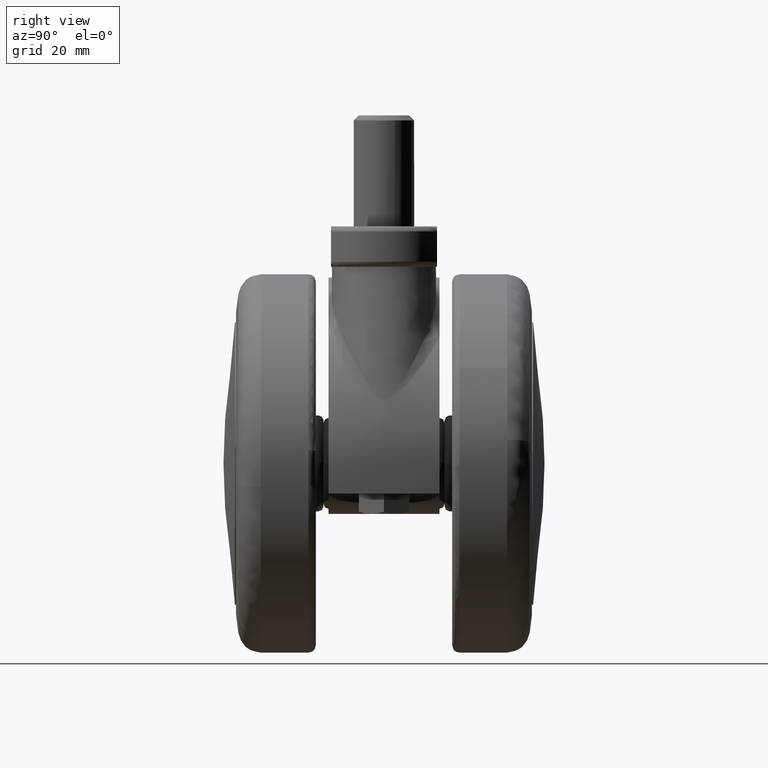
[diagram: clean part render]
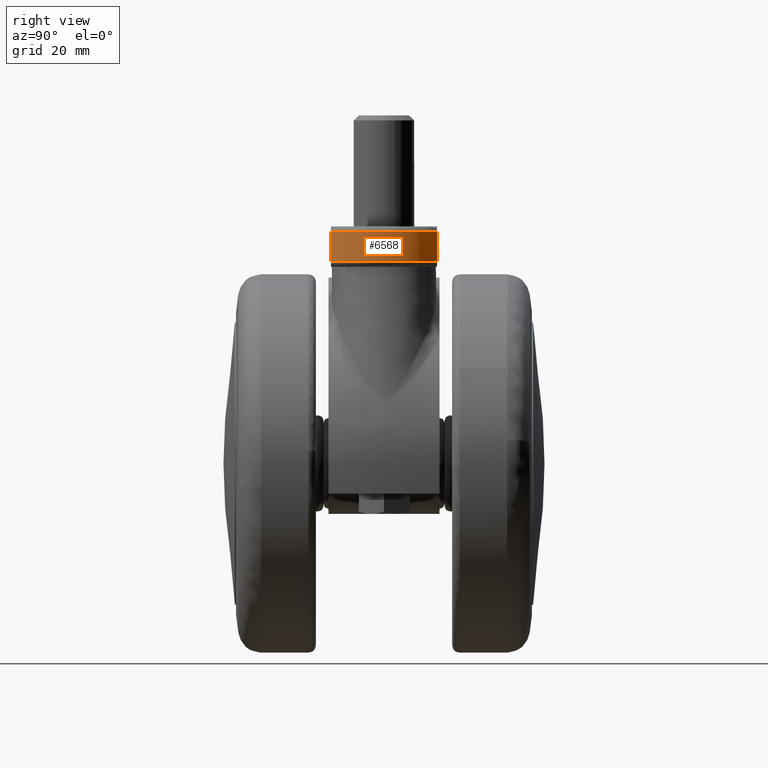
[diagram: same view with one face highlighted and labeled with its STEP entity id]
A machine part, right view. The second image highlights one B-rep face of the part: STEP entity #6568.
In plain terms, the highlighted face is a freeform B-spline surface patch.
Its self-contained STEP definition (entity closure, byte-faithful):
#5998=CARTESIAN_POINT('',(25.809474999999999,-10.500000000000000,46.0));
#5999=VERTEX_POINT('',#5998);
#6031=CARTESIAN_POINT('',(25.809474999999999,10.500000000000000,46.0));
#6032=VERTEX_POINT('',#6031);
#6033=CARTESIAN_POINT('',(25.809474999999999,10.500000000000000,46.0));
#6034=CARTESIAN_POINT('',(31.999999999999996,7.074885703601195,46.0));
#6035=CARTESIAN_POINT('',(32.0,0.0,46.0));
#6036=CARTESIAN_POINT('',(31.999999999999996,-7.074885703601193,46.0));
#6037=CARTESIAN_POINT('',(25.809474999999999,-10.500000000000000,46.0));
#6045=(BOUNDED_CURVE()B_SPLINE_CURVE(2,(#6033,#6034,#6035,#6036,#6037),.UNSPECIFIED.,.F.,.U.)B_SPLINE_CURVE_WITH_KNOTS((3,2,3),(0.0,0.500000000000000,1.0),.UNSPECIFIED.)CURVE()GEOMETRIC_REPRESENTATION_ITEM()RATIONAL_B_SPLINE_CURVE((1.0,0.861429891820523,1.0,0.861429891820523,1.0))REPRESENTATION_ITEM(''));
#6046=EDGE_CURVE('',#6032,#5999,#6045,.T.);
#6122=CARTESIAN_POINT('',(25.809474999999999,-10.500000000000000,40.0));
#6123=VERTEX_POINT('',#6122);
#6170=CARTESIAN_POINT('',(25.809474999999999,10.500000000000000,40.0));
#6171=VERTEX_POINT('',#6170);
#6201=CARTESIAN_POINT('',(25.809474999999999,-10.500000000000000,40.0));
#6202=CARTESIAN_POINT('',(31.999999999999996,-7.074885703601195,40.0));
#6203=CARTESIAN_POINT('',(32.0,0.0,40.0));
#6204=CARTESIAN_POINT('',(31.999999999999996,7.074885703601193,40.0));
#6205=CARTESIAN_POINT('',(25.809474999999999,10.500000000000000,40.0));
#6213=(BOUNDED_CURVE()B_SPLINE_CURVE(2,(#6201,#6202,#6203,#6204,#6205),.UNSPECIFIED.,.F.,.U.)B_SPLINE_CURVE_WITH_KNOTS((3,2,3),(0.0,0.500000000000000,1.0),.UNSPECIFIED.)CURVE()GEOMETRIC_REPRESENTATION_ITEM()RATIONAL_B_SPLINE_CURVE((1.0,0.861429891820523,1.0,0.861429891820523,1.0))REPRESENTATION_ITEM(''));
#6214=EDGE_CURVE('',#6123,#6171,#6213,.T.);
#6480=CARTESIAN_POINT('',(25.809474999999999,-10.500000000000000,46.0));
#6481=CARTESIAN_POINT('',(25.809474999999999,-10.500000000000000,40.0));
#6482=QUASI_UNIFORM_CURVE('',1,(#6480,#6481),.UNSPECIFIED.,.F.,.U.);
#6483=EDGE_CURVE('',#5999,#6123,#6482,.T.);
#6539=CARTESIAN_POINT('',(25.809474999999999,10.500000000000000,46.0));
#6540=CARTESIAN_POINT('',(25.809474999999999,10.500000000000000,40.0));
#6541=QUASI_UNIFORM_CURVE('',1,(#6539,#6540),.UNSPECIFIED.,.F.,.U.);
#6542=EDGE_CURVE('',#6032,#6171,#6541,.T.);
#6548=CARTESIAN_POINT('',(25.532626285090050,-10.648476247310249,46.150000000000013));
#6549=CARTESIAN_POINT('',(25.532626285090050,-10.648476247310249,39.846249999999998));
#6550=CARTESIAN_POINT('',(46.890165502960848,0.448255352338198,46.150000000000006));
#6551=CARTESIAN_POINT('',(46.890165502960848,0.448255352338198,39.846249999999998));
#6552=CARTESIAN_POINT('',(25.174633643143999,10.826964794403001,46.150000000000013));
#6553=CARTESIAN_POINT('',(25.174633643143999,10.826964794403001,39.846249999999998));
#6561=(BOUNDED_SURFACE()B_SPLINE_SURFACE(1,2,((#6548,#6550,#6552),(#6549,#6551,#6553)),.UNSPECIFIED.,.F.,.F.,.U.)B_SPLINE_SURFACE_WITH_KNOTS((2,2),(3,3),(0.0,6.303750000000008),(0.0,29.703301282502700),.UNSPECIFIED.)GEOMETRIC_REPRESENTATION_ITEM()RATIONAL_B_SPLINE_SURFACE(((1.0,0.446197813109809,1.0),(1.0,0.446197813109809,1.0)))REPRESENTATION_ITEM('')SURFACE());
#6562=ORIENTED_EDGE('',*,*,#6483,.T.);
#6563=ORIENTED_EDGE('',*,*,#6214,.T.);
#6564=ORIENTED_EDGE('',*,*,#6542,.F.);
#6565=ORIENTED_EDGE('',*,*,#6046,.T.);
#6566=EDGE_LOOP('',(#6562,#6563,#6564,#6565));
#6567=FACE_OUTER_BOUND('',#6566,.T.);
#6568=ADVANCED_FACE('',(#6567),#6561,.T.);